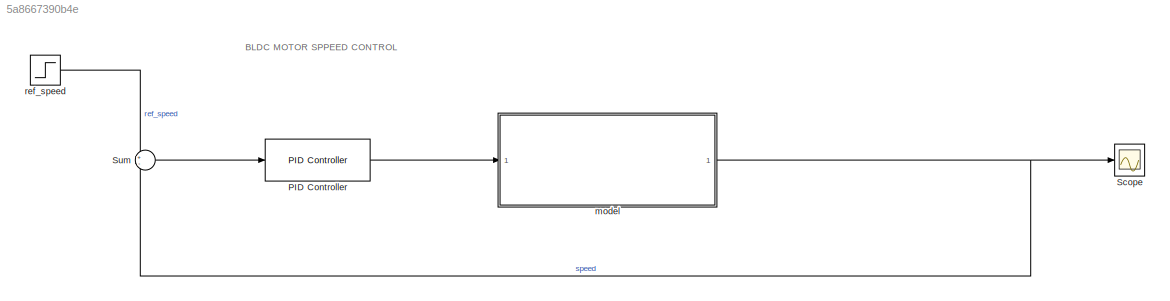
MODEL slx_5a8667390b4e
KIND model
CONFIG AbsTol = auto
CONFIG EnableMultiTasking = off
CONFIG FixedStep = auto
CONFIG MaxStep = auto
CONFIG MinStep = auto
CONFIG PostLoadFcn = kt=0.0275\nke=0.0275
CONFIG RelTol = 1e-3
CONFIG SampleTimeConstraint = Unconstrained
CONFIG Solver = VariableStepAuto
CONFIG SolverName = VariableStepAuto
CONFIG StartTime = 0.0
CONFIG StopTime = 3
WORKSPACE source: mxarray member
WORKSPACE Param: Simulink.Parameter (value not decoded)
BLOCK [Reference] PID Controller  REF=simulink/Continuous/PID Controller
  Ports = [1, 1]
  SourceBlock = simulink/Continuous/PID Controller
  SourceProductBaseCode = SL
  SourceType = PID 1dof
BLOCK [Scope] Scope
  Floating = off
  NumInputPorts = 1
  Ports = [1]
  ScopeSpecificationString = Simulink.scopes.TimeScopeBlockCfg('CurrentConfiguration', extmgr.ConfigurationSet(extmgr.Configuration('Core','General UI',true),extmgr.Configuration('Core','Source UI',true),extmgr.Configuration('Sources','WiredSimulink',true),extmgr.Configuration('Visuals','Time Domain',true,'SerializedDisplays',{struct('MinYLimReal','-189.46724','MaxYLimReal','1687.75283','YLabelReal','','MinYLimMag',' 0.00000'...<+1369ch>
BLOCK [Sum] Sum
  Inputs = +-
  Ports = [2, 1]
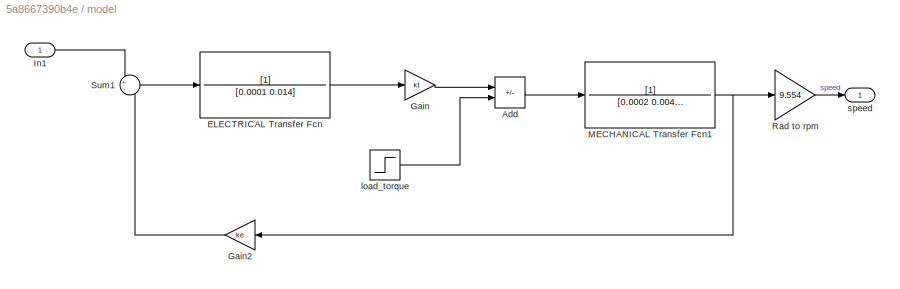
BLOCK [SubSystem] model 
  Ports = [1, 1]
  RequestExecContextInheritance = off
BLOCK [Sum] model /Add
  IconShape = rectangular
  Inputs = +-
  Ports = [2, 1]
BLOCK [TransferFcn] model /ELECTRICAL Transfer Fcn
  Denominator = [0.0001 0.014]
BLOCK [Gain] model /Gain
  Gain = kt
BLOCK [Gain] model /Gain2
  Gain = ke
  NameLocation = top
BLOCK [Inport] model /In1
BLOCK [TransferFcn] model /MECHANICAL Transfer Fcn1
  Denominator = [0.0002 0.004586]
BLOCK [Gain] model /Rad to rpm
  Gain = 9.554
BLOCK [Sum] model /Sum1
  Inputs = +-
  Ports = [2, 1]
BLOCK [Step] model /load_torque
  After = 10
  SampleTime = 0
BLOCK [Outport] model /speed
BLOCK [Step] ref_speed
  After = 1500
  SampleTime = 0
ANNOTATION (root): BLDC MOTOR SPPEED CONTROL
LINE PID Controller:1 -> model :1
LINE Sum:1 -> PID Controller:1
LINE model /Add:1 -> model /MECHANICAL Transfer Fcn1:1
LINE model /ELECTRICAL Transfer Fcn:1 -> model /Gain:1
LINE model /Gain2:1 -> model /Sum1:2
LINE model /Gain:1 -> model /Add:1
LINE model /In1:1 -> model /Sum1:1
NET model /MECHANICAL Transfer Fcn1:1 -> model /Gain2:1, model /Rad to rpm:1
LINE model /Rad to rpm:1 -> model /speed:1
LINE model /Sum1:1 -> model /ELECTRICAL Transfer Fcn:1
LINE model /load_torque:1 -> model /Add:2
NET model :1 -> Scope:1, Sum:2
LINE ref_speed:1 -> Sum:1
note: NET lines group one-source signal fan-out (src -> all destinations, sorted); 1:1 wires keep LINE
